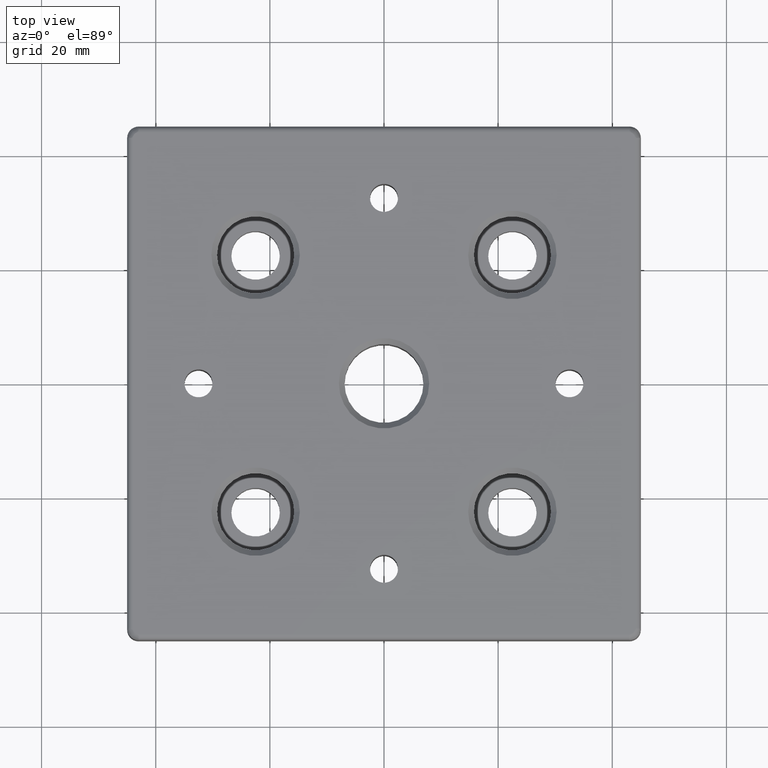
[diagram: clean part render]
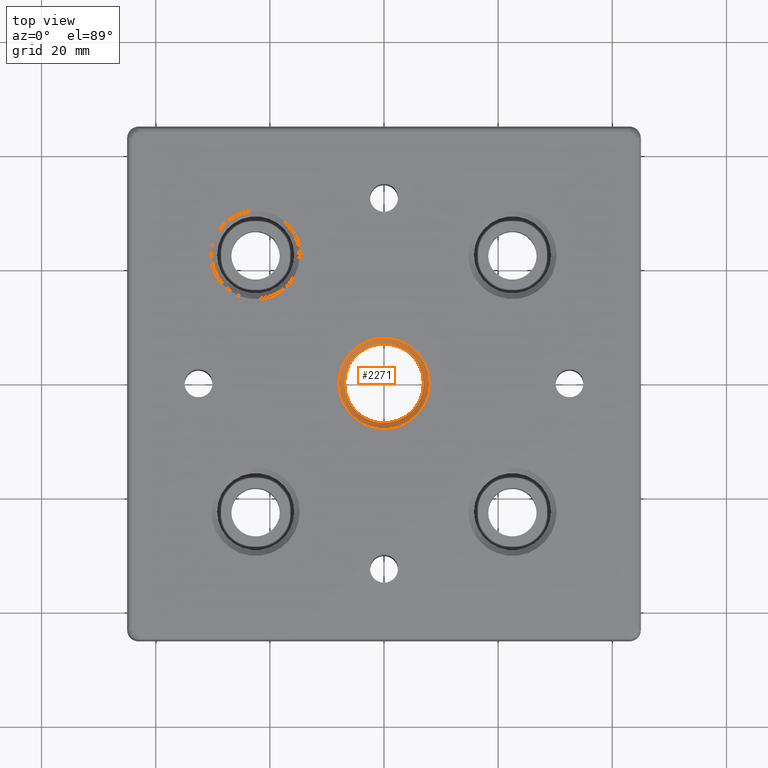
[diagram: same view with one face highlighted and labeled with its STEP entity id]
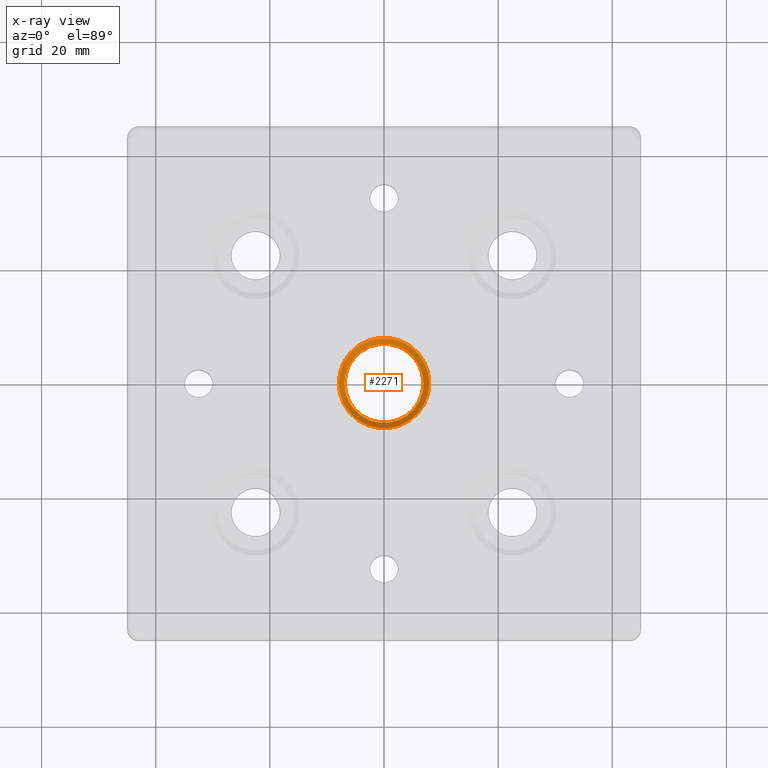
[diagram: x-ray of the same camera — body ghosted, the highlighted face saturated]
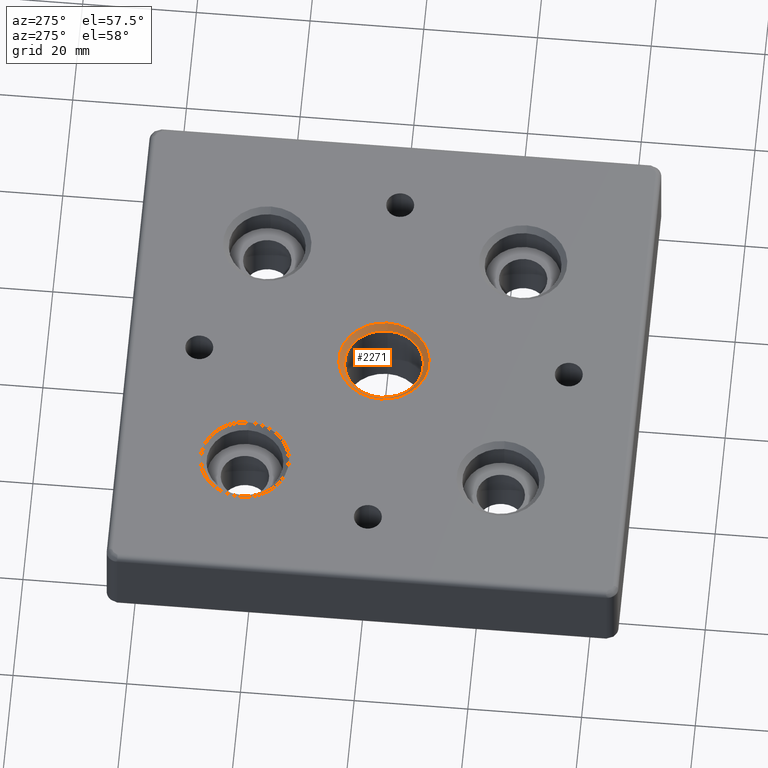
[diagram: same view with one face highlighted and labeled with its STEP entity id]
A machine part, top view. The second image highlights one B-rep face of the part: STEP entity #2271.
The next image is the same camera in x-ray: the body ghosted, the highlighted face saturated — about 0% of this face is hidden behind the body in this view.
A second angle (auxiliary view) of the same face is appended — the face is thin or edge-on in the first view.
In plain terms, the highlighted conical surface has half-angle 45 deg.
Its self-contained STEP definition (entity closure, byte-faithful):
#36=FACE_BOUND('',#345,.T.);
#69=CONICAL_SURFACE('',#2534,7.4175,45.0000000000001);
#199=FACE_OUTER_BOUND('',#344,.T.);
#344=EDGE_LOOP('',(#1872));
#345=EDGE_LOOP('',(#1873));
#847=CIRCLE('',#2527,7.9175);
#851=CIRCLE('',#2535,6.9175);
#1074=VERTEX_POINT('',#3888);
#1078=VERTEX_POINT('',#3900);
#1377=EDGE_CURVE('',#1074,#1074,#847,.T.);
#1381=EDGE_CURVE('',#1078,#1078,#851,.T.);
#1872=ORIENTED_EDGE('',*,*,#1381,.T.);
#1873=ORIENTED_EDGE('',*,*,#1377,.T.);
#2271=ADVANCED_FACE('',(#199,#36),#69,.F.);
#2527=AXIS2_PLACEMENT_3D('',#3889,#3171,#3172);
#2534=AXIS2_PLACEMENT_3D('',#3899,#3185,#3186);
#2535=AXIS2_PLACEMENT_3D('',#3901,#3187,#3188);
#3171=DIRECTION('center_axis',(0.,0.,1.));
#3172=DIRECTION('ref_axis',(-1.,0.,0.));
#3185=DIRECTION('center_axis',(0.,0.,1.));
#3186=DIRECTION('ref_axis',(-1.,0.,0.));
#3187=DIRECTION('center_axis',(0.,0.,-1.));
#3188=DIRECTION('ref_axis',(-1.,0.,0.));
#3888=CARTESIAN_POINT('',(7.9175,9.69614103224917E-16,0.));
#3889=CARTESIAN_POINT('Origin',(0.,0.,0.));
#3899=CARTESIAN_POINT('Origin',(0.,0.,-0.499999999999998));
#3900=CARTESIAN_POINT('',(6.9175,-8.47149423310182E-16,-0.999999999999996));
#3901=CARTESIAN_POINT('Origin',(0.,0.,-0.999999999999996));